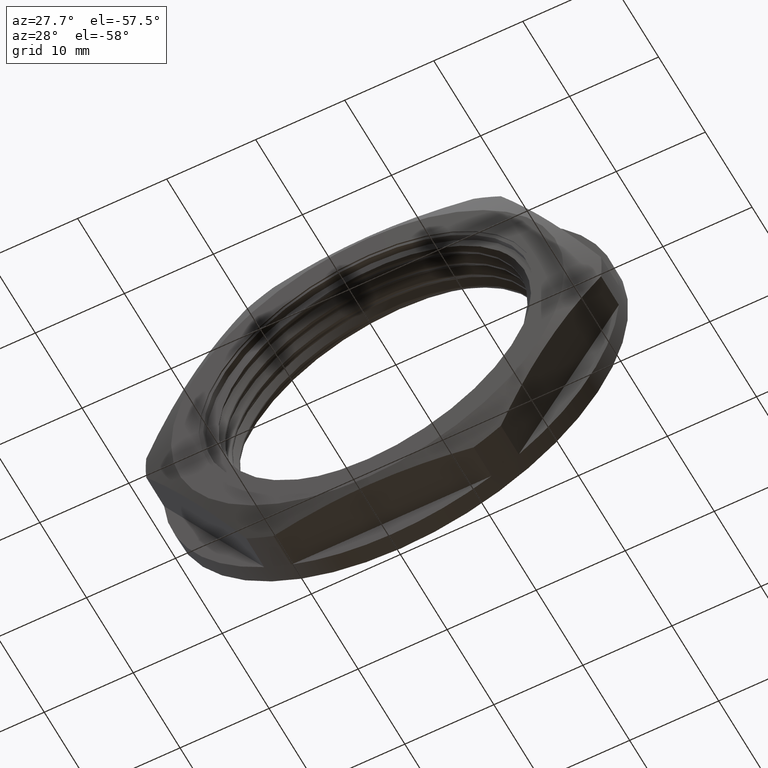
[diagram: clean part render]
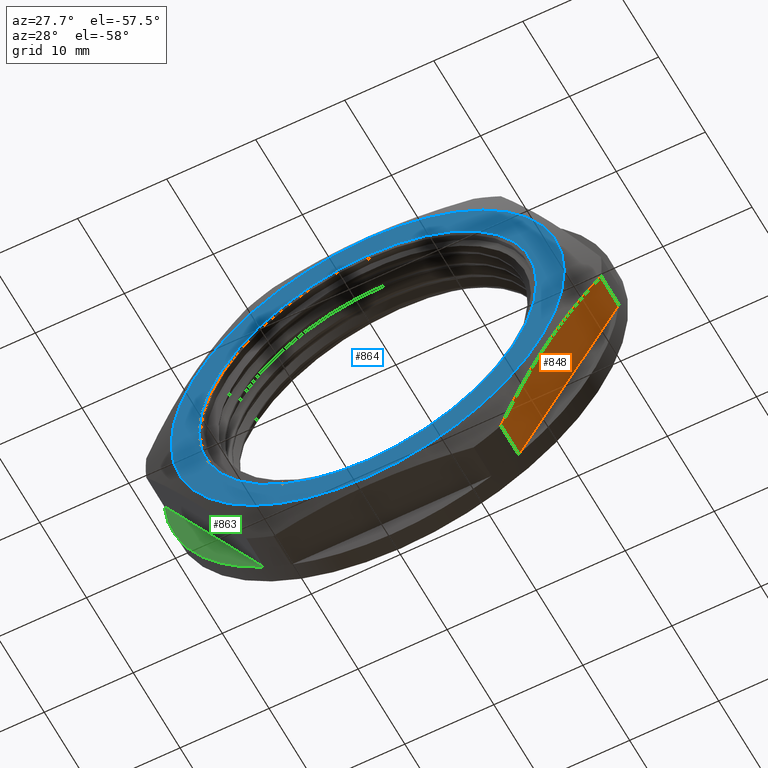
[diagram: same view with three faces highlighted in distinct colors, each labeled with its STEP entity id]
A machine part, auxiliary view with three faces highlighted in distinct colors.
Their STEP definitions:

[orange] entity #848 — the highlighted planar face has unit normal (0.866, 0, -0.5).
#69 = DIRECTION ( 'NONE',  ( 0.4999999999999998900, 0.0000000000000000000, 0.8660254037844387100 ) ) ;
#70 = CARTESIAN_POINT ( 'NONE',  ( 24.87583907169862100, -31.89999999999999900, -2.913782846910984800 ) ) ;
#118 = LINE ( 'NONE', #70, #255 ) ;
#157 = AXIS2_PLACEMENT_3D ( 'NONE', #2521, #2522, #2529 ) ;
#230 = VECTOR ( 'NONE', #1639, 1000.000000000000000 ) ;
#255 = VECTOR ( 'NONE', #69, 1000.000000000000000 ) ;
#267 = VECTOR ( 'NONE', #1723, 1000.000000000000000 ) ;
#434 = CARTESIAN_POINT ( 'NONE',  ( 14.29808608848355400, -31.89999999999999900, -21.23498844375275100 ) ) ;
#439 = CARTESIAN_POINT ( 'NONE',  ( 25.53908248560064500, -31.89999999999999900, -1.765011556247248400 ) ) ;
#448 = CARTESIAN_POINT ( 'NONE',  ( 14.29808608846065500, -35.71761219396304200, -21.23498844376817400 ) ) ;
#452 = CARTESIAN_POINT ( 'NONE',  ( 25.53908248560064800, -35.71761219396795200, -1.765011556247239900 ) ) ;
#750 = ORIENTED_EDGE ( 'NONE', *, *, #959, .T. ) ;
#754 = ORIENTED_EDGE ( 'NONE', *, *, #968, .T. ) ;
#776 = ORIENTED_EDGE ( 'NONE', *, *, #942, .F. ) ;
#834 = ORIENTED_EDGE ( 'NONE', *, *, #918, .T. ) ;
#848 = ADVANCED_FACE ( 'NONE', ( #2518 ), #2527, .T. ) ;
#918 = EDGE_CURVE ( 'NONE', #1119, #1116, #1224, .T. ) ;
#942 = EDGE_CURVE ( 'NONE', #1112, #1116, #1652, .T. ) ;
#959 = EDGE_CURVE ( 'NONE', #1092, #1119, #1716, .T. ) ;
#968 = EDGE_CURVE ( 'NONE', #1112, #1092, #118, .T. ) ;
#1092 = VERTEX_POINT ( 'NONE', #439 ) ;
#1112 = VERTEX_POINT ( 'NONE', #434 ) ;
#1116 = VERTEX_POINT ( 'NONE', #448 ) ;
#1119 = VERTEX_POINT ( 'NONE', #452 ) ;
#1224 = B_SPLINE_CURVE_WITH_KNOTS ( 'NONE', 3,
 ( #1366, #1345, #1330, #1348, #1367, #1368, #1349, #1343, #1332, #1355, #1375, #1370, #1335 ),
 .UNSPECIFIED., .F., .F.,
 ( 4, 2, 2, 1, 2, 2, 4 ),
 ( -0.001445990239411307900, 0.001364997063227836300, 0.004175984365866979700, 0.009797958971145258700, 0.01541993357642353800, 0.01823092087906267500, 0.02104190818170181100 ),
 .UNSPECIFIED. ) ;
#1330 = CARTESIAN_POINT ( 'NONE',  ( 24.60356312476771400, -36.00158386829570400, -3.385378620674239300 ) ) ;
#1332 = CARTESIAN_POINT ( 'NONE',  ( 16.63909910062349700, -36.33650146985101500, -17.18023496554652900 ) ) ;
#1335 = CARTESIAN_POINT ( 'NONE',  ( 14.29808608846065500, -35.71761219396304200, -21.23498844376817400 ) ) ;
#1343 = CARTESIAN_POINT ( 'NONE',  ( 18.04459275194306000, -36.57943335988523600, -14.74584855174553700 ) ) ;
#1345 = CARTESIAN_POINT ( 'NONE',  ( 25.07247182655810000, -35.86675948256385700, -2.573204925062145600 ) ) ;
#1348 = CARTESIAN_POINT ( 'NONE',  ( 23.66656735722133900, -36.23638297811884000, -5.008302896541567700 ) ) ;
#1349 = CARTESIAN_POINT ( 'NONE',  ( 19.91858428703581700, -36.74843624623414200, -11.50000000001087800 ) ) ;
#1355 = CARTESIAN_POINT ( 'NONE',  ( 16.17060121685030400, -36.23638297811601200, -17.99169710348019900 ) ) ;
#1366 = CARTESIAN_POINT ( 'NONE',  ( 25.53908248560064800, -35.71761219396795200, -1.765011556247239900 ) ) ;
#1367 = CARTESIAN_POINT ( 'NONE',  ( 23.19806947344815000, -36.33650146985351600, -5.819765034475231000 ) ) ;
#1368 = CARTESIAN_POINT ( 'NONE',  ( 21.79257582212858000, -36.57943335988672800, -8.254151448276221700 ) ) ;
#1370 = CARTESIAN_POINT ( 'NONE',  ( 14.76469674751357000, -35.86675948256012700, -20.42679507495958500 ) ) ;
#1375 = CARTESIAN_POINT ( 'NONE',  ( 15.23360544930392500, -36.00158386829225800, -19.61462137934752900 ) ) ;
#1639 = DIRECTION ( 'NONE',  ( -0.0000000000000000000, -1.000000000000000000, -0.0000000000000000000 ) ) ;
#1652 = LINE ( 'NONE', #1657, #230 ) ;
#1657 = CARTESIAN_POINT ( 'NONE',  ( 14.29808608848354400, -37.00000000000000000, -21.23498844375276200 ) ) ;
#1685 = CARTESIAN_POINT ( 'NONE',  ( 25.53908248560064800, -37.00000000000000000, -1.765011556247239700 ) ) ;
#1716 = LINE ( 'NONE', #1685, #267 ) ;
#1723 = DIRECTION ( 'NONE',  ( -0.0000000000000000000, -1.000000000000000000, -0.0000000000000000000 ) ) ;
#2489 = EDGE_LOOP ( 'NONE', ( #776, #754, #750, #834 ) ) ;
#2518 = FACE_OUTER_BOUND ( 'NONE', #2489, .T. ) ;
#2521 = CARTESIAN_POINT ( 'NONE',  ( 24.87583907169862100, -37.00000000000000000, -2.913782846910984800 ) ) ;
#2522 = DIRECTION ( 'NONE',  ( 0.8660254037844387100, 0.0000000000000000000, -0.4999999999999998900 ) ) ;
#2527 = PLANE ( 'NONE',  #157 ) ;
#2529 = DIRECTION ( 'NONE',  ( -0.4999999999999998900, 0.0000000000000000000, -0.8660254037844387100 ) ) ;

[blue] entity #864 — the highlighted planar face has unit normal (0, 1, 0).
#2 = FACE_BOUND ( 'NONE', #2594, .T. ) ;
#3 = FACE_OUTER_BOUND ( 'NONE', #2608, .T. ) ;
#10 = PLANE ( 'NONE',  #187 ) ;
#14 = CARTESIAN_POINT ( 'NONE',  ( 22.95000000000000300, -37.00000000000000700, 0.0000000000000000000 ) ) ;
#27 = DIRECTION ( 'NONE',  ( 0.0000000000000000000, 1.000000000000000000, 0.0000000000000000000 ) ) ;
#30 = DIRECTION ( 'NONE',  ( 0.0000000000000000000, -0.0000000000000000000, 1.000000000000000000 ) ) ;
#178 = CIRCLE ( 'NONE', #179, 22.07666845994293300 ) ;
#179 = AXIS2_PLACEMENT_3D ( 'NONE', #2006, #2010, #2025 ) ;
#187 = AXIS2_PLACEMENT_3D ( 'NONE', #14, #27, #30 ) ;
#209 = CIRCLE ( 'NONE', #220, 18.96770528361167200 ) ;
#220 = AXIS2_PLACEMENT_3D ( 'NONE', #1358, #1331, #1347 ) ;
#232 = CIRCLE ( 'NONE', #245, 22.07666845994293300 ) ;
#245 = AXIS2_PLACEMENT_3D ( 'NONE', #1683, #1721, #1724 ) ;
#246 = AXIS2_PLACEMENT_3D ( 'NONE', #1675, #1663, #1646 ) ;
#259 = CIRCLE ( 'NONE', #246, 18.96770528361167200 ) ;
#399 = CARTESIAN_POINT ( 'NONE',  ( 2.919353971173934000E-015, -37.00000000000000700, -22.07666845994293300 ) ) ;
#406 = CARTESIAN_POINT ( 'NONE',  ( 2.322873956274537200E-015, -37.00000000000000700, -18.96770528361167200 ) ) ;
#422 = CARTESIAN_POINT ( 'NONE',  ( 0.0000000000000000000, -37.00000000000000700, 18.96770528361167200 ) ) ;
#435 = CARTESIAN_POINT ( 'NONE',  ( 0.0000000000000000000, -37.00000000000000700, 22.07666845994293300 ) ) ;
#864 = ADVANCED_FACE ( 'NONE', ( #2, #3 ), #10, .F. ) ;
#893 = EDGE_CURVE ( 'NONE', #1078, #1075, #178, .T. ) ;
#917 = EDGE_CURVE ( 'NONE', #1087, #1070, #209, .T. ) ;
#944 = EDGE_CURVE ( 'NONE', #1070, #1087, #259, .T. ) ;
#954 = EDGE_CURVE ( 'NONE', #1075, #1078, #232, .T. ) ;
#1070 = VERTEX_POINT ( 'NONE', #406 ) ;
#1075 = VERTEX_POINT ( 'NONE', #399 ) ;
#1078 = VERTEX_POINT ( 'NONE', #435 ) ;
#1087 = VERTEX_POINT ( 'NONE', #422 ) ;
#1331 = DIRECTION ( 'NONE',  ( -0.0000000000000000000, -1.000000000000000000, -0.0000000000000000000 ) ) ;
#1347 = DIRECTION ( 'NONE',  ( 0.0000000000000000000, 0.0000000000000000000, 1.000000000000000000 ) ) ;
#1358 = CARTESIAN_POINT ( 'NONE',  ( 0.0000000000000000000, -37.00000000000000700, 0.0000000000000000000 ) ) ;
#1646 = DIRECTION ( 'NONE',  ( 0.0000000000000000000, 0.0000000000000000000, 1.000000000000000000 ) ) ;
#1663 = DIRECTION ( 'NONE',  ( -0.0000000000000000000, -1.000000000000000000, -0.0000000000000000000 ) ) ;
#1675 = CARTESIAN_POINT ( 'NONE',  ( 0.0000000000000000000, -37.00000000000000700, 0.0000000000000000000 ) ) ;
#1683 = CARTESIAN_POINT ( 'NONE',  ( 0.0000000000000000000, -37.00000000000000700, 0.0000000000000000000 ) ) ;
#1721 = DIRECTION ( 'NONE',  ( -0.0000000000000000000, 1.000000000000000000, 0.0000000000000000000 ) ) ;
#1724 = DIRECTION ( 'NONE',  ( 0.0000000000000000000, 0.0000000000000000000, 1.000000000000000000 ) ) ;
#2006 = CARTESIAN_POINT ( 'NONE',  ( 0.0000000000000000000, -37.00000000000000700, 0.0000000000000000000 ) ) ;
#2010 = DIRECTION ( 'NONE',  ( -0.0000000000000000000, 1.000000000000000000, 0.0000000000000000000 ) ) ;
#2025 = DIRECTION ( 'NONE',  ( 0.0000000000000000000, 0.0000000000000000000, 1.000000000000000000 ) ) ;
#2573 = ORIENTED_EDGE ( 'NONE', *, *, #954, .F. ) ;
#2575 = ORIENTED_EDGE ( 'NONE', *, *, #944, .F. ) ;
#2581 = ORIENTED_EDGE ( 'NONE', *, *, #893, .F. ) ;
#2585 = ORIENTED_EDGE ( 'NONE', *, *, #917, .F. ) ;
#2594 = EDGE_LOOP ( 'NONE', ( #2585, #2575 ) ) ;
#2608 = EDGE_LOOP ( 'NONE', ( #2581, #2573 ) ) ;

[green] entity #863 — the highlighted planar face has unit normal (0, 1, 0).
#1 = CARTESIAN_POINT ( 'NONE',  ( 0.0000000000000000000, -31.89999999999999900, 0.0000000000000000000 ) ) ;
#8 = FACE_OUTER_BOUND ( 'NONE', #2471, .T. ) ;
#11 = PLANE ( 'NONE',  #180 ) ;
#12 = DIRECTION ( 'NONE',  ( 0.0000000000000000000, 1.000000000000000000, 0.0000000000000000000 ) ) ;
#13 = DIRECTION ( 'NONE',  ( 0.0000000000000000000, -0.0000000000000000000, 1.000000000000000000 ) ) ;
#180 = AXIS2_PLACEMENT_3D ( 'NONE', #1, #12, #13 ) ;
#247 = AXIS2_PLACEMENT_3D ( 'NONE', #333, #338, #328 ) ;
#264 = CIRCLE ( 'NONE', #247, 25.60000000000000100 ) ;
#281 = VECTOR ( 'NONE', #362, 1000.000000000000100 ) ;
#328 = DIRECTION ( 'NONE',  ( 0.0000000000000000000, 0.0000000000000000000, 1.000000000000000000 ) ) ;
#333 = CARTESIAN_POINT ( 'NONE',  ( 0.0000000000000000000, -31.89999999999999900, 0.0000000000000000000 ) ) ;
#338 = DIRECTION ( 'NONE',  ( 0.0000000000000000000, 1.000000000000000000, 0.0000000000000000000 ) ) ;
#359 = CARTESIAN_POINT ( 'NONE',  ( -14.96132950238554200, -31.89999999999999900, -20.08621715308905200 ) ) ;
#362 = DIRECTION ( 'NONE',  ( 0.5000000000000004400, 0.0000000000000000000, -0.8660254037844383700 ) ) ;
#384 = LINE ( 'NONE', #359, #281 ) ;
#485 = CARTESIAN_POINT ( 'NONE',  ( -14.29808608848352800, -31.89999999999999900, -21.23498844375277300 ) ) ;
#497 = CARTESIAN_POINT ( 'NONE',  ( -25.53908248560064800, -31.89999999999999900, -1.765011556247246600 ) ) ;
#777 = ORIENTED_EDGE ( 'NONE', *, *, #963, .F. ) ;
#784 = ORIENTED_EDGE ( 'NONE', *, *, #980, .F. ) ;
#863 = ADVANCED_FACE ( 'NONE', ( #8 ), #11, .F. ) ;
#963 = EDGE_CURVE ( 'NONE', #1125, #1130, #264, .T. ) ;
#980 = EDGE_CURVE ( 'NONE', #1130, #1125, #384, .T. ) ;
#1125 = VERTEX_POINT ( 'NONE', #485 ) ;
#1130 = VERTEX_POINT ( 'NONE', #497 ) ;
#2471 = EDGE_LOOP ( 'NONE', ( #777, #784 ) ) ;